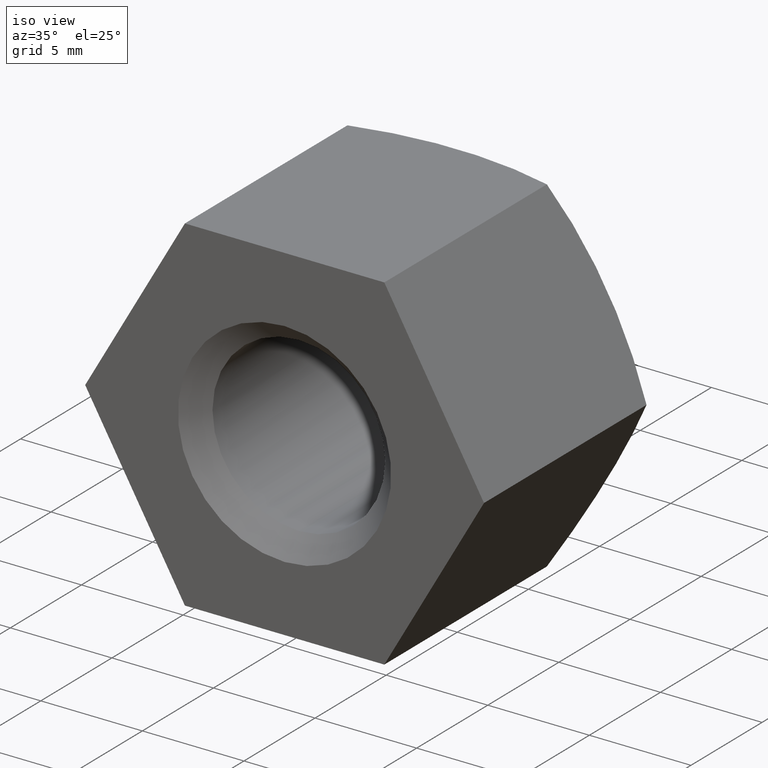
[diagram: clean part render]
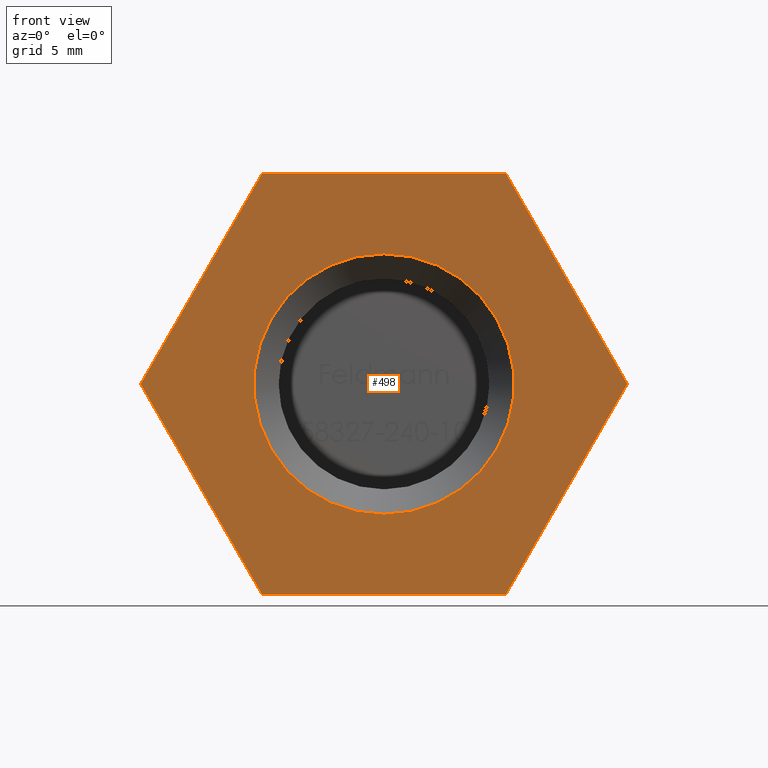
[diagram: tour spotlight — one face highlighted and labeled with its STEP entity id]
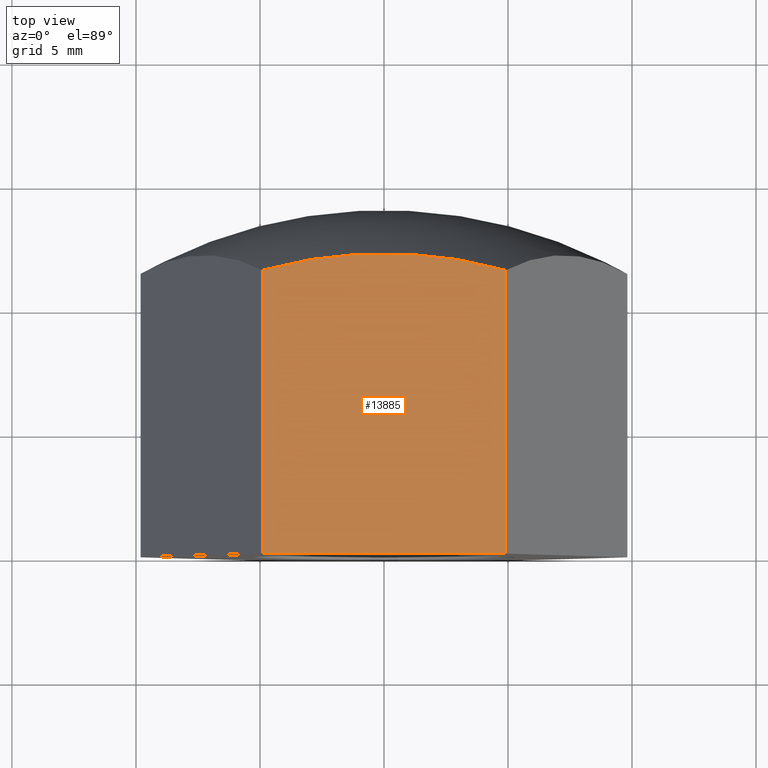
[diagram: tour spotlight — one face highlighted and labeled with its STEP entity id]
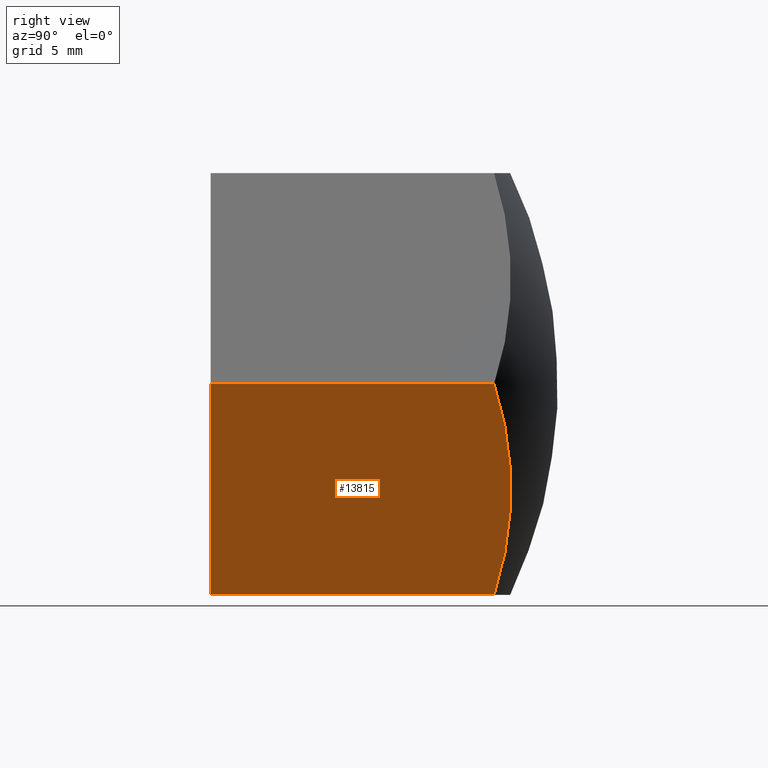
[diagram: tour spotlight — one face highlighted and labeled with its STEP entity id]
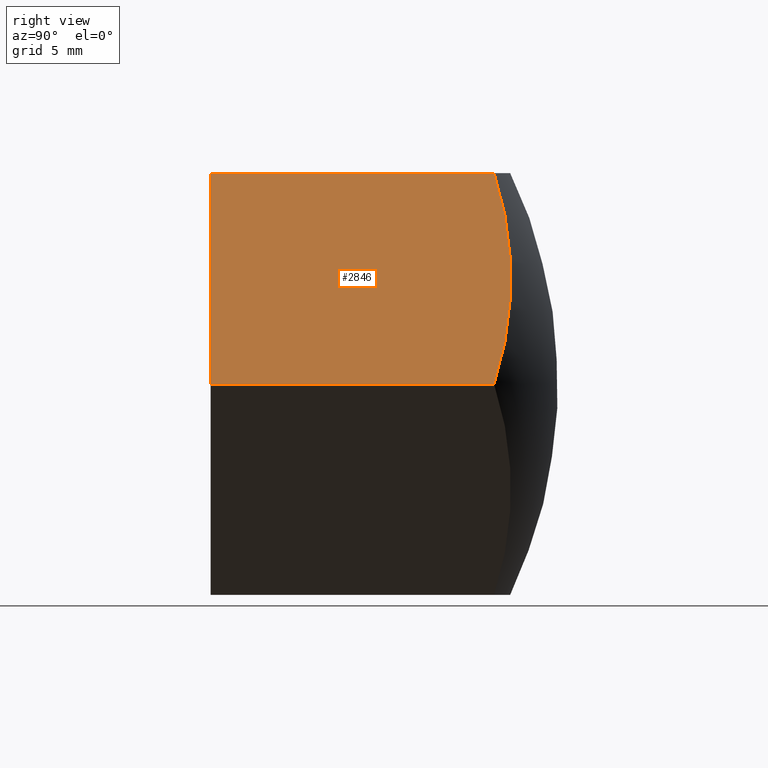
[diagram: tour spotlight — one face highlighted and labeled with its STEP entity id]
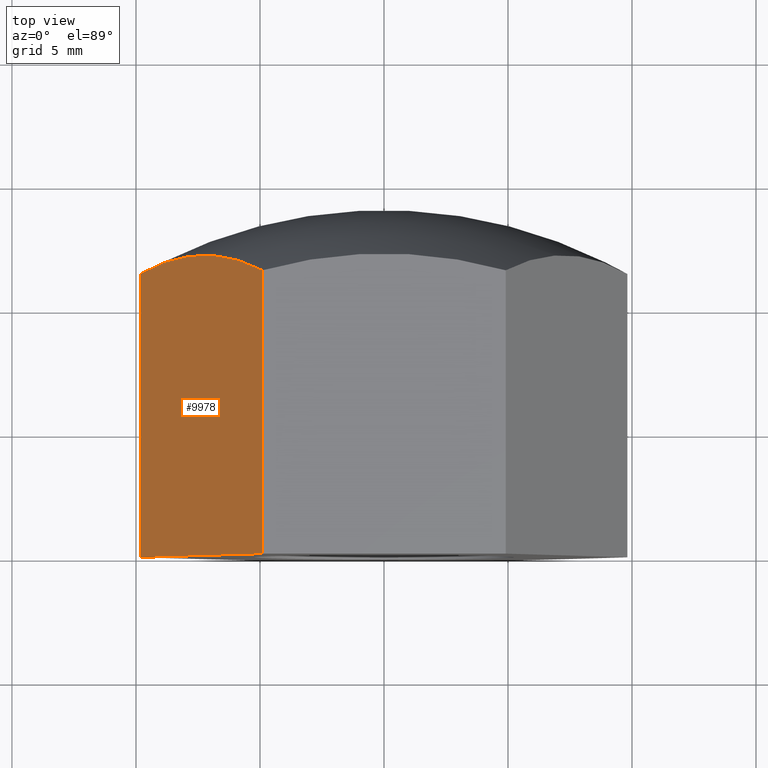
[diagram: tour spotlight — one face highlighted and labeled with its STEP entity id]
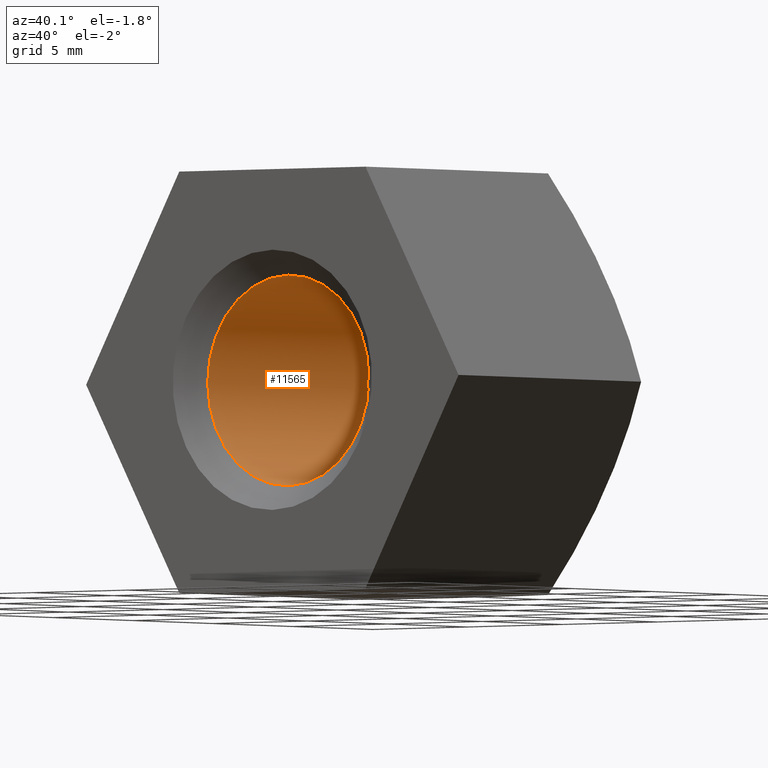
[diagram: tour spotlight — one face highlighted and labeled with its STEP entity id]
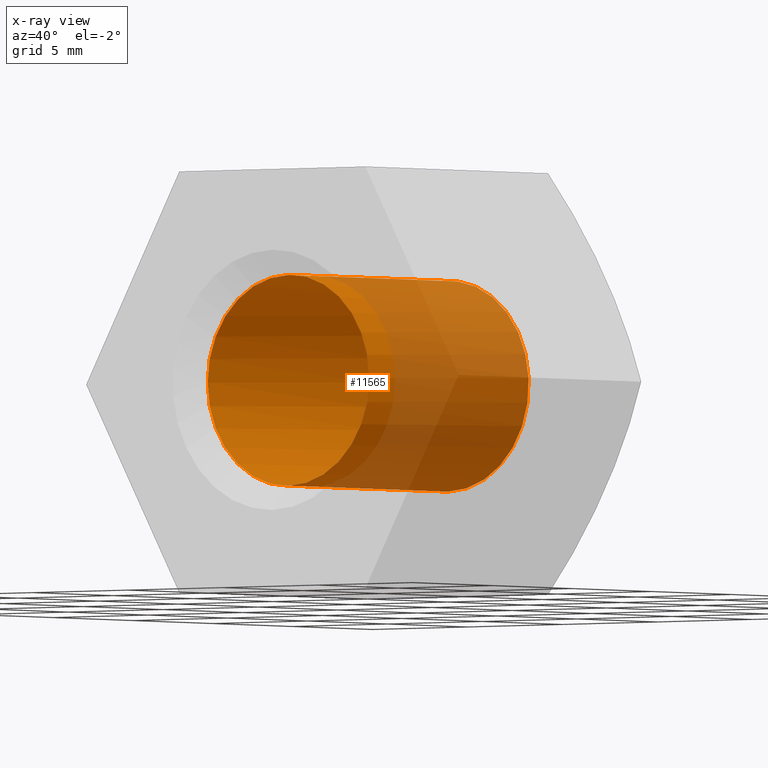
[diagram: x-ray of the same camera — body ghosted, this tour face saturated]
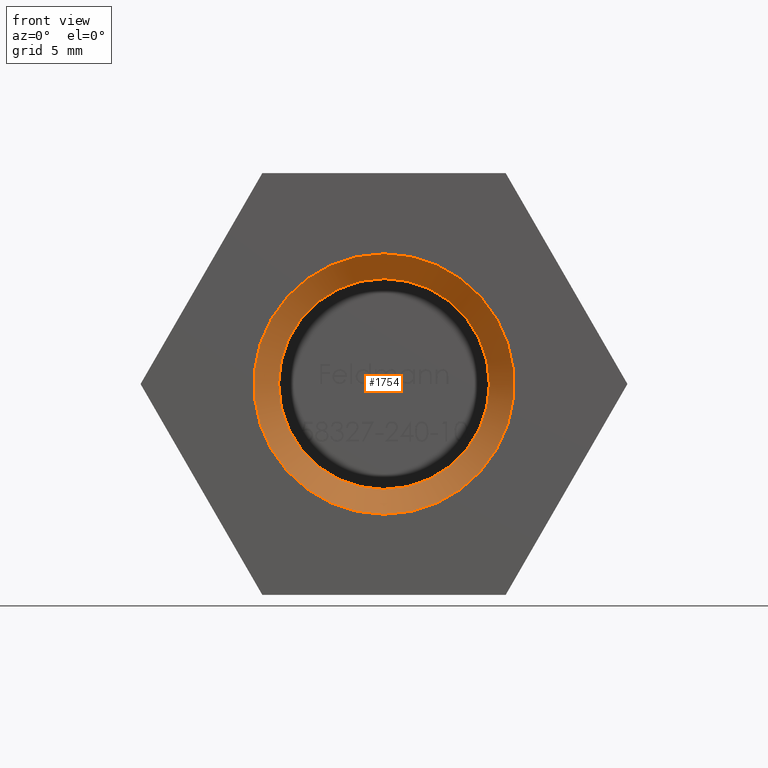
[diagram: tour spotlight — one face highlighted and labeled with its STEP entity id]
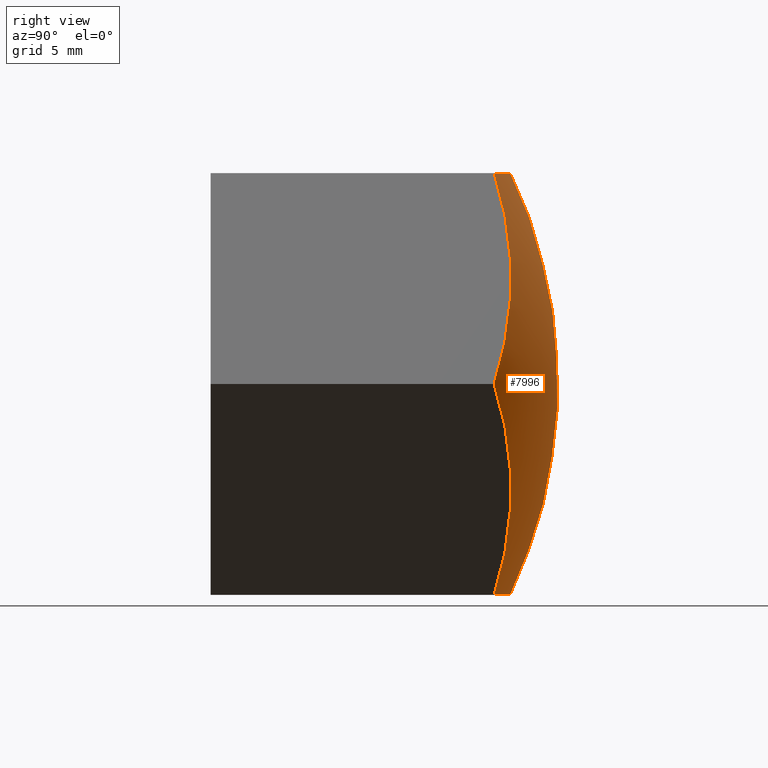
[diagram: tour spotlight — one face highlighted and labeled with its STEP entity id]
A machine part: a face-by-face anatomy tour. The part has 264 B-rep faces; the first image is the clean iso view, then the 8 largest visible faces are spotlighted one at a time (largest first), each with its STEP entity span.

Face 1 — front view, entity #498. In plain terms, the highlighted planar face has unit normal (0, 1, 0).
Definition (entity closure, byte-faithful):
#131 = LINE ( 'NONE', #4355, #9715 ) ;
#498 = ADVANCED_FACE ( 'NONE', ( #5648, #10811 ), #4535, .F. ) ;
#600 = EDGE_CURVE ( 'NONE', #8804, #8804, #1056, .T. ) ;
#679 = VECTOR ( 'NONE', #2719, 1000.000000000000000 ) ;
#1056 = CIRCLE ( 'NONE', #3073, 5.250000000000000888 ) ;
#1521 = CARTESIAN_POINT ( 'NONE',  ( -9.814954576223639648, 0.000000000000000000, -5.202893113404952294E-15 ) ) ;
#1833 = EDGE_CURVE ( 'NONE', #12482, #7891, #7765, .T. ) ;
#2052 = CARTESIAN_POINT ( 'NONE',  ( 0.000000000000000000, 0.000000000000000000, 5.250000000000000888 ) ) ;
#2196 = CARTESIAN_POINT ( 'NONE',  ( -9.814954576223639648, 0.000000000000000000, -5.202893113404952294E-15 ) ) ;
#2230 = CARTESIAN_POINT ( 'NONE',  ( 4.907477288111816272, 0.000000000000000000, -8.500000000000001776 ) ) ;
#2440 = VECTOR ( 'NONE', #2725, 1000.000000000000114 ) ;
#2503 = VERTEX_POINT ( 'NONE', #11295 ) ;
#2719 = DIRECTION ( 'NONE',  ( 1.000000000000000000, 0.000000000000000000, 0.000000000000000000 ) ) ;
#2725 = DIRECTION ( 'NONE',  ( -0.5000000000000002220, 0.000000000000000000, -0.8660254037844384856 ) ) ;
#3073 = AXIS2_PLACEMENT_3D ( 'NONE', #10651, #10509, #11676 ) ;
#3168 = VECTOR ( 'NONE', #3839, 1000.000000000000114 ) ;
#3280 = EDGE_LOOP ( 'NONE', ( #3783, #12334, #13739, #11910, #13878, #8244 ) ) ;
#3355 = CARTESIAN_POINT ( 'NONE',  ( -4.907477288111819824, 0.000000000000000000, -8.500000000000001776 ) ) ;
#3520 = LINE ( 'NONE', #13724, #3168 ) ;
#3783 = ORIENTED_EDGE ( 'NONE', *, *, #9271, .F. ) ;
#3839 = DIRECTION ( 'NONE',  ( 0.5000000000000001110, 0.000000000000000000, -0.8660254037844385966 ) ) ;
#4355 = CARTESIAN_POINT ( 'NONE',  ( 4.907477288111816272, 0.000000000000000000, -8.500000000000001776 ) ) ;
#4535 = PLANE ( 'NONE',  #11732 ) ;
#4924 = DIRECTION ( 'NONE',  ( 0.5000000000000002220, 0.000000000000000000, 0.8660254037844384856 ) ) ;
#5240 = CARTESIAN_POINT ( 'NONE',  ( 4.907477288111824265, 0.000000000000000000, 8.499999999999996447 ) ) ;
#5311 = LINE ( 'NONE', #1521, #12778 ) ;
#5451 = LINE ( 'NONE', #7069, #2440 ) ;
#5648 = FACE_BOUND ( 'NONE', #11752, .T. ) ;
#5669 = DIRECTION ( 'NONE',  ( 0.000000000000000000, 1.000000000000000000, 0.000000000000000000 ) ) ;
#5798 = VECTOR ( 'NONE', #14263, 1000.000000000000227 ) ;
#6093 = CARTESIAN_POINT ( 'NONE',  ( -4.907477288111816272, 0.000000000000000000, 8.499999999999996447 ) ) ;
#6352 = LINE ( 'NONE', #6093, #679 ) ;
#7056 = EDGE_CURVE ( 'NONE', #13930, #8961, #6352, .T. ) ;
#7069 = CARTESIAN_POINT ( 'NONE',  ( 9.814954576223641425, 0.000000000000000000, 3.478469870610631907E-15 ) ) ;
#7700 = EDGE_CURVE ( 'NONE', #7891, #13930, #5311, .T. ) ;
#7765 = LINE ( 'NONE', #10769, #5798 ) ;
#7891 = VERTEX_POINT ( 'NONE', #2196 ) ;
#8244 = ORIENTED_EDGE ( 'NONE', *, *, #11313, .F. ) ;
#8804 = VERTEX_POINT ( 'NONE', #2052 ) ;
#8961 = VERTEX_POINT ( 'NONE', #5240 ) ;
#9068 = CARTESIAN_POINT ( 'NONE',  ( 0.000000000000000000, 0.000000000000000000, 0.000000000000000000 ) ) ;
#9225 = ORIENTED_EDGE ( 'NONE', *, *, #600, .T. ) ;
#9271 = EDGE_CURVE ( 'NONE', #8961, #2503, #3520, .T. ) ;
#9715 = VECTOR ( 'NONE', #10001, 1000.000000000000000 ) ;
#10001 = DIRECTION ( 'NONE',  ( -1.000000000000000000, 0.000000000000000000, 0.000000000000000000 ) ) ;
#10509 = DIRECTION ( 'NONE',  ( 0.000000000000000000, 1.000000000000000000, 0.000000000000000000 ) ) ;
#10651 = CARTESIAN_POINT ( 'NONE',  ( 0.000000000000000000, 0.000000000000000000, 0.000000000000000000 ) ) ;
#10765 = CARTESIAN_POINT ( 'NONE',  ( -4.907477288111816272, 0.000000000000000000, 8.499999999999996447 ) ) ;
#10769 = CARTESIAN_POINT ( 'NONE',  ( -4.907477288111819824, 0.000000000000000000, -8.500000000000001776 ) ) ;
#10811 = FACE_OUTER_BOUND ( 'NONE', #3280, .T. ) ;
#10839 = VERTEX_POINT ( 'NONE', #2230 ) ;
#11295 = CARTESIAN_POINT ( 'NONE',  ( 9.814954576223641425, 0.000000000000000000, 3.478469870610631907E-15 ) ) ;
#11313 = EDGE_CURVE ( 'NONE', #2503, #10839, #5451, .T. ) ;
#11486 = DIRECTION ( 'NONE',  ( 0.000000000000000000, -0.000000000000000000, 1.000000000000000000 ) ) ;
#11676 = DIRECTION ( 'NONE',  ( 0.000000000000000000, 0.000000000000000000, 1.000000000000000000 ) ) ;
#11732 = AXIS2_PLACEMENT_3D ( 'NONE', #9068, #5669, #11486 ) ;
#11752 = EDGE_LOOP ( 'NONE', ( #9225 ) ) ;
#11910 = ORIENTED_EDGE ( 'NONE', *, *, #1833, .F. ) ;
#12334 = ORIENTED_EDGE ( 'NONE', *, *, #7056, .F. ) ;
#12482 = VERTEX_POINT ( 'NONE', #3355 ) ;
#12521 = EDGE_CURVE ( 'NONE', #10839, #12482, #131, .T. ) ;
#12778 = VECTOR ( 'NONE', #4924, 1000.000000000000000 ) ;
#13724 = CARTESIAN_POINT ( 'NONE',  ( 4.907477288111824265, 0.000000000000000000, 8.499999999999996447 ) ) ;
#13739 = ORIENTED_EDGE ( 'NONE', *, *, #7700, .F. ) ;
#13878 = ORIENTED_EDGE ( 'NONE', *, *, #12521, .F. ) ;
#13930 = VERTEX_POINT ( 'NONE', #10765 ) ;
#14263 = DIRECTION ( 'NONE',  ( -0.5000000000000001110, 0.000000000000000000, 0.8660254037844384856 ) ) ;

Face 2 — top view, entity #13885. In plain terms, the highlighted planar face has unit normal (0, 0, -1).
Definition (entity closure, byte-faithful):
#13 = EDGE_CURVE ( 'NONE', #1627, #4502, #3820, .T. ) ;
#15 = ORIENTED_EDGE ( 'NONE', *, *, #13, .T. ) ;
#679 = VECTOR ( 'NONE', #2719, 1000.000000000000000 ) ;
#820 = DIRECTION ( 'NONE',  ( -0.000000000000000000, -1.000000000000000000, -0.000000000000000000 ) ) ;
#952 = ORIENTED_EDGE ( 'NONE', *, *, #6137, .F. ) ;
#1200 = EDGE_CURVE ( 'NONE', #4502, #13930, #4933, .T. ) ;
#1627 = VERTEX_POINT ( 'NONE', #6605 ) ;
#2667 = FACE_OUTER_BOUND ( 'NONE', #12783, .T. ) ;
#2719 = DIRECTION ( 'NONE',  ( 1.000000000000000000, 0.000000000000000000, 0.000000000000000000 ) ) ;
#3699 = DIRECTION ( 'NONE',  ( -1.000000000000000000, 0.000000000000000000, -0.000000000000000000 ) ) ;
#3820 = CIRCLE ( 'NONE', #7103, 18.10386699023166912 ) ;
#4502 = VERTEX_POINT ( 'NONE', #11368 ) ;
#4933 = LINE ( 'NONE', #5941, #13639 ) ;
#5240 = CARTESIAN_POINT ( 'NONE',  ( 4.907477288111824265, 0.000000000000000000, 8.499999999999996447 ) ) ;
#5940 = PLANE ( 'NONE',  #8866 ) ;
#5941 = CARTESIAN_POINT ( 'NONE',  ( -4.907477288111816272, 14.00000000000000000, 8.499999999999996447 ) ) ;
#6093 = CARTESIAN_POINT ( 'NONE',  ( -4.907477288111816272, 0.000000000000000000, 8.499999999999996447 ) ) ;
#6137 = EDGE_CURVE ( 'NONE', #1627, #8961, #10921, .T. ) ;
#6352 = LINE ( 'NONE', #6093, #679 ) ;
#6605 = CARTESIAN_POINT ( 'NONE',  ( 4.907477288111825153, 11.42603416347697731, 8.499999999999996447 ) ) ;
#7056 = EDGE_CURVE ( 'NONE', #13930, #8961, #6352, .T. ) ;
#7100 = DIRECTION ( 'NONE',  ( 0.000000000000000000, 0.000000000000000000, -1.000000000000000000 ) ) ;
#7103 = AXIS2_PLACEMENT_3D ( 'NONE', #10872, #14326, #8636 ) ;
#7547 = VECTOR ( 'NONE', #820, 1000.000000000000000 ) ;
#8636 = DIRECTION ( 'NONE',  ( -1.000000000000000000, 5.318043541120866511E-15, 0.000000000000000000 ) ) ;
#8651 = CARTESIAN_POINT ( 'NONE',  ( 4.907477288111824265, 14.00000000000000000, 8.499999999999996447 ) ) ;
#8866 = AXIS2_PLACEMENT_3D ( 'NONE', #13882, #7100, #3699 ) ;
#8961 = VERTEX_POINT ( 'NONE', #5240 ) ;
#10586 = DIRECTION ( 'NONE',  ( -0.000000000000000000, -1.000000000000000000, -0.000000000000000000 ) ) ;
#10765 = CARTESIAN_POINT ( 'NONE',  ( -4.907477288111816272, 0.000000000000000000, 8.499999999999996447 ) ) ;
#10872 = CARTESIAN_POINT ( 'NONE',  ( 0.000000000000000000, -6.000000000000000000, 8.499999999999996447 ) ) ;
#10921 = LINE ( 'NONE', #8651, #7547 ) ;
#11040 = ORIENTED_EDGE ( 'NONE', *, *, #7056, .T. ) ;
#11368 = CARTESIAN_POINT ( 'NONE',  ( -4.907477288111816272, 11.42603416347697731, 8.499999999999996447 ) ) ;
#12783 = EDGE_LOOP ( 'NONE', ( #952, #15, #13918, #11040 ) ) ;
#13639 = VECTOR ( 'NONE', #10586, 1000.000000000000000 ) ;
#13882 = CARTESIAN_POINT ( 'NONE',  ( -4.907477288111816272, 14.00000000000000000, 8.499999999999996447 ) ) ;
#13885 = ADVANCED_FACE ( 'NONE', ( #2667 ), #5940, .F. ) ;
#13918 = ORIENTED_EDGE ( 'NONE', *, *, #1200, .T. ) ;
#13930 = VERTEX_POINT ( 'NONE', #10765 ) ;
#14326 = DIRECTION ( 'NONE',  ( -0.000000000000000000, -0.000000000000000000, 1.000000000000000000 ) ) ;

Face 3 — right view, entity #13815. In plain terms, the highlighted planar face has unit normal (-0.866, 0, 0.5).
Definition (entity closure, byte-faithful):
#261 = DIRECTION ( 'NONE',  ( 0.5000000000000002220, 0.000000000000000000, 0.8660254037844384856 ) ) ;
#676 = CARTESIAN_POINT ( 'NONE',  ( 4.907477288111816272, 14.00000000000000000, -8.500000000000001776 ) ) ;
#1536 = VECTOR ( 'NONE', #4122, 1000.000000000000000 ) ;
#1856 = ORIENTED_EDGE ( 'NONE', *, *, #11313, .T. ) ;
#2102 = DIRECTION ( 'NONE',  ( 0.8660254037844387076, -0.000000000000000000, -0.5000000000000003331 ) ) ;
#2230 = CARTESIAN_POINT ( 'NONE',  ( 4.907477288111816272, 0.000000000000000000, -8.500000000000001776 ) ) ;
#2440 = VECTOR ( 'NONE', #2725, 1000.000000000000114 ) ;
#2478 = DIRECTION ( 'NONE',  ( -0.8660254037844385966, 0.000000000000000000, 0.5000000000000003331 ) ) ;
#2503 = VERTEX_POINT ( 'NONE', #11295 ) ;
#2725 = DIRECTION ( 'NONE',  ( -0.5000000000000002220, 0.000000000000000000, -0.8660254037844384856 ) ) ;
#3199 = VERTEX_POINT ( 'NONE', #5483 ) ;
#3399 = EDGE_CURVE ( 'NONE', #3199, #10839, #10952, .T. ) ;
#3421 = AXIS2_PLACEMENT_3D ( 'NONE', #11512, #2478, #261 ) ;
#3471 = EDGE_CURVE ( 'NONE', #3199, #7669, #12353, .T. ) ;
#4122 = DIRECTION ( 'NONE',  ( -0.000000000000000000, -1.000000000000000000, -0.000000000000000000 ) ) ;
#4222 = CARTESIAN_POINT ( 'NONE',  ( 7.361215932167725740, -6.000000000000000000, -4.250000000000000888 ) ) ;
#5245 = VECTOR ( 'NONE', #10599, 1000.000000000000000 ) ;
#5451 = LINE ( 'NONE', #7069, #2440 ) ;
#5483 = CARTESIAN_POINT ( 'NONE',  ( 4.907477288111817160, 11.42603416347697731, -8.500000000000001776 ) ) ;
#7067 = ORIENTED_EDGE ( 'NONE', *, *, #13380, .T. ) ;
#7069 = CARTESIAN_POINT ( 'NONE',  ( 9.814954576223641425, 0.000000000000000000, 3.478469870610631907E-15 ) ) ;
#7658 = FACE_OUTER_BOUND ( 'NONE', #13526, .T. ) ;
#7669 = VERTEX_POINT ( 'NONE', #14001 ) ;
#8489 = CARTESIAN_POINT ( 'NONE',  ( 9.814954576223641425, 14.00000000000000000, 3.478469870610631907E-15 ) ) ;
#8595 = ORIENTED_EDGE ( 'NONE', *, *, #3471, .T. ) ;
#8637 = LINE ( 'NONE', #8489, #5245 ) ;
#10357 = AXIS2_PLACEMENT_3D ( 'NONE', #4222, #2102, #14552 ) ;
#10599 = DIRECTION ( 'NONE',  ( -0.000000000000000000, -1.000000000000000000, -0.000000000000000000 ) ) ;
#10630 = PLANE ( 'NONE',  #3421 ) ;
#10839 = VERTEX_POINT ( 'NONE', #2230 ) ;
#10952 = LINE ( 'NONE', #676, #1536 ) ;
#11295 = CARTESIAN_POINT ( 'NONE',  ( 9.814954576223641425, 0.000000000000000000, 3.478469870610631907E-15 ) ) ;
#11313 = EDGE_CURVE ( 'NONE', #2503, #10839, #5451, .T. ) ;
#11512 = CARTESIAN_POINT ( 'NONE',  ( 9.814954576223641425, 14.00000000000000000, 3.478469870610631907E-15 ) ) ;
#12353 = CIRCLE ( 'NONE', #10357, 18.10386699023166912 ) ;
#13380 = EDGE_CURVE ( 'NONE', #7669, #2503, #8637, .T. ) ;
#13526 = EDGE_LOOP ( 'NONE', ( #14623, #8595, #7067, #1856 ) ) ;
#13815 = ADVANCED_FACE ( 'NONE', ( #7658 ), #10630, .F. ) ;
#14001 = CARTESIAN_POINT ( 'NONE',  ( 9.814954576223639648, 11.42603416347697731, 8.673617379884035472E-16 ) ) ;
#14552 = DIRECTION ( 'NONE',  ( 0.5000000000000002220, -3.545362360747244604E-15, 0.8660254037844385966 ) ) ;
#14623 = ORIENTED_EDGE ( 'NONE', *, *, #3399, .F. ) ;

Face 4 — right view, entity #2846. In plain terms, the highlighted planar face has unit normal (-0.866, 0, -0.5).
Definition (entity closure, byte-faithful):
#820 = DIRECTION ( 'NONE',  ( -0.000000000000000000, -1.000000000000000000, -0.000000000000000000 ) ) ;
#1627 = VERTEX_POINT ( 'NONE', #6605 ) ;
#2503 = VERTEX_POINT ( 'NONE', #11295 ) ;
#2846 = ADVANCED_FACE ( 'NONE', ( #6138 ), #13099, .F. ) ;
#2991 = EDGE_LOOP ( 'NONE', ( #9831, #3594, #12085, #14448 ) ) ;
#3168 = VECTOR ( 'NONE', #3839, 1000.000000000000114 ) ;
#3188 = DIRECTION ( 'NONE',  ( 0.8660254037844388186, -0.000000000000000000, 0.5000000000000001110 ) ) ;
#3520 = LINE ( 'NONE', #13724, #3168 ) ;
#3594 = ORIENTED_EDGE ( 'NONE', *, *, #12864, .T. ) ;
#3839 = DIRECTION ( 'NONE',  ( 0.5000000000000001110, 0.000000000000000000, -0.8660254037844385966 ) ) ;
#4059 = CARTESIAN_POINT ( 'NONE',  ( 4.907477288111824265, 14.00000000000000000, 8.499999999999996447 ) ) ;
#4434 = CARTESIAN_POINT ( 'NONE',  ( 7.361215932167731957, -6.000000000000000000, 4.250000000000001776 ) ) ;
#5240 = CARTESIAN_POINT ( 'NONE',  ( 4.907477288111824265, 0.000000000000000000, 8.499999999999996447 ) ) ;
#5245 = VECTOR ( 'NONE', #10599, 1000.000000000000000 ) ;
#6137 = EDGE_CURVE ( 'NONE', #1627, #8961, #10921, .T. ) ;
#6138 = FACE_OUTER_BOUND ( 'NONE', #2991, .T. ) ;
#6154 = DIRECTION ( 'NONE',  ( -0.5000000000000000000, 0.000000000000000000, 0.8660254037844385966 ) ) ;
#6308 = CIRCLE ( 'NONE', #7895, 18.10386699023166912 ) ;
#6605 = CARTESIAN_POINT ( 'NONE',  ( 4.907477288111825153, 11.42603416347697731, 8.499999999999996447 ) ) ;
#7547 = VECTOR ( 'NONE', #820, 1000.000000000000000 ) ;
#7669 = VERTEX_POINT ( 'NONE', #14001 ) ;
#7895 = AXIS2_PLACEMENT_3D ( 'NONE', #4434, #3188, #13516 ) ;
#8489 = CARTESIAN_POINT ( 'NONE',  ( 9.814954576223641425, 14.00000000000000000, 3.478469870610631907E-15 ) ) ;
#8637 = LINE ( 'NONE', #8489, #5245 ) ;
#8651 = CARTESIAN_POINT ( 'NONE',  ( 4.907477288111824265, 14.00000000000000000, 8.499999999999996447 ) ) ;
#8961 = VERTEX_POINT ( 'NONE', #5240 ) ;
#9271 = EDGE_CURVE ( 'NONE', #8961, #2503, #3520, .T. ) ;
#9831 = ORIENTED_EDGE ( 'NONE', *, *, #13380, .F. ) ;
#10599 = DIRECTION ( 'NONE',  ( -0.000000000000000000, -1.000000000000000000, -0.000000000000000000 ) ) ;
#10810 = AXIS2_PLACEMENT_3D ( 'NONE', #4059, #12904, #6154 ) ;
#10921 = LINE ( 'NONE', #8651, #7547 ) ;
#11295 = CARTESIAN_POINT ( 'NONE',  ( 9.814954576223641425, 0.000000000000000000, 3.478469870610631907E-15 ) ) ;
#12085 = ORIENTED_EDGE ( 'NONE', *, *, #6137, .T. ) ;
#12864 = EDGE_CURVE ( 'NONE', #7669, #1627, #6308, .T. ) ;
#12904 = DIRECTION ( 'NONE',  ( -0.8660254037844387076, 0.000000000000000000, -0.5000000000000001110 ) ) ;
#13099 = PLANE ( 'NONE',  #10810 ) ;
#13380 = EDGE_CURVE ( 'NONE', #7669, #2503, #8637, .T. ) ;
#13516 = DIRECTION ( 'NONE',  ( -0.5000000000000000000, 0.000000000000000000, 0.8660254037844385966 ) ) ;
#13724 = CARTESIAN_POINT ( 'NONE',  ( 4.907477288111824265, 0.000000000000000000, 8.499999999999996447 ) ) ;
#14001 = CARTESIAN_POINT ( 'NONE',  ( 9.814954576223639648, 11.42603416347697731, 8.673617379884035472E-16 ) ) ;
#14448 = ORIENTED_EDGE ( 'NONE', *, *, #9271, .T. ) ;

Face 5 — top view, entity #9978. In plain terms, the highlighted planar face has unit normal (0.866, 0, -0.5).
Definition (entity closure, byte-faithful):
#877 = DIRECTION ( 'NONE',  ( -0.000000000000000000, -1.000000000000000000, -0.000000000000000000 ) ) ;
#1001 = EDGE_CURVE ( 'NONE', #4502, #1280, #5106, .T. ) ;
#1200 = EDGE_CURVE ( 'NONE', #4502, #13930, #4933, .T. ) ;
#1280 = VERTEX_POINT ( 'NONE', #8284 ) ;
#1521 = CARTESIAN_POINT ( 'NONE',  ( -9.814954576223639648, 0.000000000000000000, -5.202893113404952294E-15 ) ) ;
#2196 = CARTESIAN_POINT ( 'NONE',  ( -9.814954576223639648, 0.000000000000000000, -5.202893113404952294E-15 ) ) ;
#4423 = CARTESIAN_POINT ( 'NONE',  ( -9.814954576223639648, 14.00000000000000000, -5.202893113404952294E-15 ) ) ;
#4502 = VERTEX_POINT ( 'NONE', #11368 ) ;
#4836 = ORIENTED_EDGE ( 'NONE', *, *, #9920, .T. ) ;
#4924 = DIRECTION ( 'NONE',  ( 0.5000000000000002220, 0.000000000000000000, 0.8660254037844384856 ) ) ;
#4933 = LINE ( 'NONE', #5941, #13639 ) ;
#5106 = CIRCLE ( 'NONE', #6813, 18.10386699023166912 ) ;
#5311 = LINE ( 'NONE', #1521, #12778 ) ;
#5817 = VECTOR ( 'NONE', #877, 1000.000000000000000 ) ;
#5941 = CARTESIAN_POINT ( 'NONE',  ( -4.907477288111816272, 14.00000000000000000, 8.499999999999996447 ) ) ;
#6524 = DIRECTION ( 'NONE',  ( -0.8660254037844385966, -0.000000000000000000, 0.5000000000000002220 ) ) ;
#6657 = PLANE ( 'NONE',  #10565 ) ;
#6813 = AXIS2_PLACEMENT_3D ( 'NONE', #12322, #6524, #8717 ) ;
#7700 = EDGE_CURVE ( 'NONE', #7891, #13930, #5311, .T. ) ;
#7891 = VERTEX_POINT ( 'NONE', #2196 ) ;
#8284 = CARTESIAN_POINT ( 'NONE',  ( -9.814954576223639648, 11.42603416347697731, -8.673617379884035472E-16 ) ) ;
#8417 = EDGE_LOOP ( 'NONE', ( #8547, #12446, #4836, #11728 ) ) ;
#8485 = LINE ( 'NONE', #13309, #5817 ) ;
#8547 = ORIENTED_EDGE ( 'NONE', *, *, #1200, .F. ) ;
#8717 = DIRECTION ( 'NONE',  ( -0.5000000000000001110, -3.545362360747244604E-15, -0.8660254037844385966 ) ) ;
#9920 = EDGE_CURVE ( 'NONE', #1280, #7891, #8485, .T. ) ;
#9978 = ADVANCED_FACE ( 'NONE', ( #14705 ), #6657, .F. ) ;
#10565 = AXIS2_PLACEMENT_3D ( 'NONE', #4423, #13405, #13502 ) ;
#10586 = DIRECTION ( 'NONE',  ( -0.000000000000000000, -1.000000000000000000, -0.000000000000000000 ) ) ;
#10765 = CARTESIAN_POINT ( 'NONE',  ( -4.907477288111816272, 0.000000000000000000, 8.499999999999996447 ) ) ;
#11368 = CARTESIAN_POINT ( 'NONE',  ( -4.907477288111816272, 11.42603416347697731, 8.499999999999996447 ) ) ;
#11728 = ORIENTED_EDGE ( 'NONE', *, *, #7700, .T. ) ;
#12322 = CARTESIAN_POINT ( 'NONE',  ( -7.361215932167727516, -6.000000000000000000, 4.250000000000000888 ) ) ;
#12446 = ORIENTED_EDGE ( 'NONE', *, *, #1001, .T. ) ;
#12778 = VECTOR ( 'NONE', #4924, 1000.000000000000000 ) ;
#13309 = CARTESIAN_POINT ( 'NONE',  ( -9.814954576223639648, 14.00000000000000000, -5.202893113404952294E-15 ) ) ;
#13405 = DIRECTION ( 'NONE',  ( 0.8660254037844385966, 0.000000000000000000, -0.5000000000000003331 ) ) ;
#13502 = DIRECTION ( 'NONE',  ( -0.5000000000000002220, 0.000000000000000000, -0.8660254037844384856 ) ) ;
#13639 = VECTOR ( 'NONE', #10586, 1000.000000000000000 ) ;
#13930 = VERTEX_POINT ( 'NONE', #10765 ) ;
#14705 = FACE_OUTER_BOUND ( 'NONE', #8417, .T. ) ;

Face 6 — auxiliary view, entity #11565. An x-ray twin of the same camera follows (body ghosted, this face saturated) — the face is partly hidden behind the body. In plain terms, the highlighted cylindrical surface (bore or boss wall) has radius 4.25 mm, axis along (-0, -1, -0).
Definition (entity closure, byte-faithful):
#28 = ORIENTED_EDGE ( 'NONE', *, *, #8164, .T. ) ;
#1131 = AXIS2_PLACEMENT_3D ( 'NONE', #6752, #11229, #2189 ) ;
#1943 = ORIENTED_EDGE ( 'NONE', *, *, #6244, .F. ) ;
#2189 = DIRECTION ( 'NONE',  ( 0.000000000000000000, 0.000000000000000000, -1.000000000000000000 ) ) ;
#2462 = AXIS2_PLACEMENT_3D ( 'NONE', #6542, #14486, #8585 ) ;
#4294 = DIRECTION ( 'NONE',  ( 0.000000000000000000, 0.000000000000000000, -1.000000000000000000 ) ) ;
#5260 = FACE_OUTER_BOUND ( 'NONE', #12099, .T. ) ;
#5362 = CARTESIAN_POINT ( 'NONE',  ( 0.000000000000000000, 1.000000000000001776, 4.249999999999996447 ) ) ;
#5761 = VERTEX_POINT ( 'NONE', #11868 ) ;
#6055 = EDGE_LOOP ( 'NONE', ( #1943 ) ) ;
#6244 = EDGE_CURVE ( 'NONE', #5761, #5761, #10731, .T. ) ;
#6542 = CARTESIAN_POINT ( 'NONE',  ( 0.000000000000000000, 1.000000000000001776, 0.000000000000000000 ) ) ;
#6752 = CARTESIAN_POINT ( 'NONE',  ( 0.000000000000000000, 11.00000000000000000, 0.000000000000000000 ) ) ;
#8164 = EDGE_CURVE ( 'NONE', #13032, #13032, #12417, .T. ) ;
#8585 = DIRECTION ( 'NONE',  ( 0.000000000000000000, 0.000000000000000000, 1.000000000000000000 ) ) ;
#10731 = CIRCLE ( 'NONE', #1131, 4.249999999999994671 ) ;
#11226 = AXIS2_PLACEMENT_3D ( 'NONE', #13426, #14422, #4294 ) ;
#11229 = DIRECTION ( 'NONE',  ( -0.000000000000000000, -1.000000000000000000, -0.000000000000000000 ) ) ;
#11565 = ADVANCED_FACE ( 'NONE', ( #5260, #12728 ), #14137, .F. ) ;
#11868 = CARTESIAN_POINT ( 'NONE',  ( 0.000000000000000000, 11.00000000000000000, -4.249999999999994671 ) ) ;
#12099 = EDGE_LOOP ( 'NONE', ( #28 ) ) ;
#12417 = CIRCLE ( 'NONE', #2462, 4.249999999999996447 ) ;
#12728 = FACE_OUTER_BOUND ( 'NONE', #6055, .T. ) ;
#13032 = VERTEX_POINT ( 'NONE', #5362 ) ;
#13426 = CARTESIAN_POINT ( 'NONE',  ( 0.000000000000000000, 0.000000000000000000, 0.000000000000000000 ) ) ;
#14137 = CYLINDRICAL_SURFACE ( 'NONE', #11226, 4.249999999999996447 ) ;
#14422 = DIRECTION ( 'NONE',  ( -0.000000000000000000, -1.000000000000000000, -0.000000000000000000 ) ) ;
#14486 = DIRECTION ( 'NONE',  ( 0.000000000000000000, -1.000000000000000000, 0.000000000000000000 ) ) ;

Face 7 — front view, entity #1754. In plain terms, the highlighted conical surface has half-angle 45 deg.
Definition (entity closure, byte-faithful):
#401 = ORIENTED_EDGE ( 'NONE', *, *, #600, .F. ) ;
#600 = EDGE_CURVE ( 'NONE', #8804, #8804, #1056, .T. ) ;
#1056 = CIRCLE ( 'NONE', #3073, 5.250000000000000888 ) ;
#1754 = ADVANCED_FACE ( 'NONE', ( #14518, #8466 ), #12558, .F. ) ;
#2052 = CARTESIAN_POINT ( 'NONE',  ( 0.000000000000000000, 0.000000000000000000, 5.250000000000000888 ) ) ;
#2462 = AXIS2_PLACEMENT_3D ( 'NONE', #6542, #14486, #8585 ) ;
#3073 = AXIS2_PLACEMENT_3D ( 'NONE', #10651, #10509, #11676 ) ;
#5362 = CARTESIAN_POINT ( 'NONE',  ( 0.000000000000000000, 1.000000000000001776, 4.249999999999996447 ) ) ;
#6542 = CARTESIAN_POINT ( 'NONE',  ( 0.000000000000000000, 1.000000000000001776, 0.000000000000000000 ) ) ;
#6680 = DIRECTION ( 'NONE',  ( 0.000000000000000000, 0.000000000000000000, -1.000000000000000000 ) ) ;
#7877 = CARTESIAN_POINT ( 'NONE',  ( 0.000000000000000000, 1.000000000000001776, 0.000000000000000000 ) ) ;
#8164 = EDGE_CURVE ( 'NONE', #13032, #13032, #12417, .T. ) ;
#8466 = FACE_BOUND ( 'NONE', #11255, .T. ) ;
#8585 = DIRECTION ( 'NONE',  ( 0.000000000000000000, 0.000000000000000000, 1.000000000000000000 ) ) ;
#8804 = VERTEX_POINT ( 'NONE', #2052 ) ;
#10509 = DIRECTION ( 'NONE',  ( 0.000000000000000000, 1.000000000000000000, 0.000000000000000000 ) ) ;
#10651 = CARTESIAN_POINT ( 'NONE',  ( 0.000000000000000000, 0.000000000000000000, 0.000000000000000000 ) ) ;
#11099 = EDGE_LOOP ( 'NONE', ( #401 ) ) ;
#11255 = EDGE_LOOP ( 'NONE', ( #11452 ) ) ;
#11452 = ORIENTED_EDGE ( 'NONE', *, *, #8164, .F. ) ;
#11676 = DIRECTION ( 'NONE',  ( 0.000000000000000000, 0.000000000000000000, 1.000000000000000000 ) ) ;
#12417 = CIRCLE ( 'NONE', #2462, 4.249999999999996447 ) ;
#12558 = CONICAL_SURFACE ( 'NONE', #14408, 4.249999999999996447, 0.7853981633974496113 ) ;
#13032 = VERTEX_POINT ( 'NONE', #5362 ) ;
#13472 = DIRECTION ( 'NONE',  ( 0.000000000000000000, -1.000000000000000000, 0.000000000000000000 ) ) ;
#14408 = AXIS2_PLACEMENT_3D ( 'NONE', #7877, #13472, #6680 ) ;
#14486 = DIRECTION ( 'NONE',  ( 0.000000000000000000, -1.000000000000000000, 0.000000000000000000 ) ) ;
#14518 = FACE_OUTER_BOUND ( 'NONE', #11099, .T. ) ;

Face 8 — right view, entity #7996. In plain terms, the highlighted spherical surface has radius 20 mm.
Definition (entity closure, byte-faithful):
#10 = AXIS2_PLACEMENT_3D ( 'NONE', #13376, #14523, #6484 ) ;
#13 = EDGE_CURVE ( 'NONE', #1627, #4502, #3820, .T. ) ;
#209 = EDGE_LOOP ( 'NONE', ( #2874, #7105, #4532, #13545, #10850, #9634 ) ) ;
#462 = DIRECTION ( 'NONE',  ( 1.000000000000000000, 0.000000000000000000, 0.000000000000000000 ) ) ;
#1001 = EDGE_CURVE ( 'NONE', #4502, #1280, #5106, .T. ) ;
#1280 = VERTEX_POINT ( 'NONE', #8284 ) ;
#1627 = VERTEX_POINT ( 'NONE', #6605 ) ;
#1714 = CARTESIAN_POINT ( 'NONE',  ( -4.907477288111815383, 11.42603416347697731, -8.500000000000001776 ) ) ;
#2102 = DIRECTION ( 'NONE',  ( 0.8660254037844387076, -0.000000000000000000, -0.5000000000000003331 ) ) ;
#2874 = ORIENTED_EDGE ( 'NONE', *, *, #3471, .F. ) ;
#3188 = DIRECTION ( 'NONE',  ( 0.8660254037844388186, -0.000000000000000000, 0.5000000000000001110 ) ) ;
#3199 = VERTEX_POINT ( 'NONE', #5483 ) ;
#3471 = EDGE_CURVE ( 'NONE', #3199, #7669, #12353, .T. ) ;
#3820 = CIRCLE ( 'NONE', #7103, 18.10386699023166912 ) ;
#4222 = CARTESIAN_POINT ( 'NONE',  ( 7.361215932167725740, -6.000000000000000000, -4.250000000000000888 ) ) ;
#4434 = CARTESIAN_POINT ( 'NONE',  ( 7.361215932167731957, -6.000000000000000000, 4.250000000000001776 ) ) ;
#4502 = VERTEX_POINT ( 'NONE', #11368 ) ;
#4532 = ORIENTED_EDGE ( 'NONE', *, *, #9184, .F. ) ;
#5106 = CIRCLE ( 'NONE', #6813, 18.10386699023166912 ) ;
#5294 = VERTEX_POINT ( 'NONE', #1714 ) ;
#5406 = AXIS2_PLACEMENT_3D ( 'NONE', #10715, #6079, #11787 ) ;
#5483 = CARTESIAN_POINT ( 'NONE',  ( 4.907477288111817160, 11.42603416347697731, -8.500000000000001776 ) ) ;
#6056 = AXIS2_PLACEMENT_3D ( 'NONE', #12748, #10822, #462 ) ;
#6079 = DIRECTION ( 'NONE',  ( -0.8660254037844387076, 0.000000000000000000, -0.5000000000000002220 ) ) ;
#6308 = CIRCLE ( 'NONE', #7895, 18.10386699023166912 ) ;
#6484 = DIRECTION ( 'NONE',  ( 1.000000000000000000, 7.090724721494490785E-15, 0.000000000000000000 ) ) ;
#6524 = DIRECTION ( 'NONE',  ( -0.8660254037844385966, -0.000000000000000000, 0.5000000000000002220 ) ) ;
#6605 = CARTESIAN_POINT ( 'NONE',  ( 4.907477288111825153, 11.42603416347697731, 8.499999999999996447 ) ) ;
#6813 = AXIS2_PLACEMENT_3D ( 'NONE', #12322, #6524, #8717 ) ;
#7103 = AXIS2_PLACEMENT_3D ( 'NONE', #10872, #14326, #8636 ) ;
#7105 = ORIENTED_EDGE ( 'NONE', *, *, #11563, .F. ) ;
#7669 = VERTEX_POINT ( 'NONE', #14001 ) ;
#7895 = AXIS2_PLACEMENT_3D ( 'NONE', #4434, #3188, #13516 ) ;
#7996 = ADVANCED_FACE ( 'NONE', ( #14561 ), #11548, .T. ) ;
#8284 = CARTESIAN_POINT ( 'NONE',  ( -9.814954576223639648, 11.42603416347697731, -8.673617379884035472E-16 ) ) ;
#8636 = DIRECTION ( 'NONE',  ( -1.000000000000000000, 5.318043541120866511E-15, 0.000000000000000000 ) ) ;
#8717 = DIRECTION ( 'NONE',  ( -0.5000000000000001110, -3.545362360747244604E-15, -0.8660254037844385966 ) ) ;
#9184 = EDGE_CURVE ( 'NONE', #1280, #5294, #10313, .T. ) ;
#9634 = ORIENTED_EDGE ( 'NONE', *, *, #12864, .F. ) ;
#10098 = CIRCLE ( 'NONE', #10, 18.10386699023166557 ) ;
#10313 = CIRCLE ( 'NONE', #5406, 18.10386699023166912 ) ;
#10357 = AXIS2_PLACEMENT_3D ( 'NONE', #4222, #2102, #14552 ) ;
#10715 = CARTESIAN_POINT ( 'NONE',  ( -7.361215932167727516, -6.000000000000000000, -4.250000000000000888 ) ) ;
#10822 = DIRECTION ( 'NONE',  ( 0.000000000000000000, 0.000000000000000000, 1.000000000000000000 ) ) ;
#10850 = ORIENTED_EDGE ( 'NONE', *, *, #13, .F. ) ;
#10872 = CARTESIAN_POINT ( 'NONE',  ( 0.000000000000000000, -6.000000000000000000, 8.499999999999996447 ) ) ;
#11368 = CARTESIAN_POINT ( 'NONE',  ( -4.907477288111816272, 11.42603416347697731, 8.499999999999996447 ) ) ;
#11548 = SPHERICAL_SURFACE ( 'NONE', #6056, 19.99999999999999645 ) ;
#11563 = EDGE_CURVE ( 'NONE', #5294, #3199, #10098, .T. ) ;
#11787 = DIRECTION ( 'NONE',  ( 0.5000000000000001110, -1.772681180373622302E-15, -0.8660254037844385966 ) ) ;
#12322 = CARTESIAN_POINT ( 'NONE',  ( -7.361215932167727516, -6.000000000000000000, 4.250000000000000888 ) ) ;
#12353 = CIRCLE ( 'NONE', #10357, 18.10386699023166912 ) ;
#12748 = CARTESIAN_POINT ( 'NONE',  ( 0.000000000000000000, -6.000000000000000000, 0.000000000000000000 ) ) ;
#12864 = EDGE_CURVE ( 'NONE', #7669, #1627, #6308, .T. ) ;
#13376 = CARTESIAN_POINT ( 'NONE',  ( 0.000000000000000000, -6.000000000000000000, -8.500000000000001776 ) ) ;
#13516 = DIRECTION ( 'NONE',  ( -0.5000000000000000000, 0.000000000000000000, 0.8660254037844385966 ) ) ;
#13545 = ORIENTED_EDGE ( 'NONE', *, *, #1001, .F. ) ;
#14001 = CARTESIAN_POINT ( 'NONE',  ( 9.814954576223639648, 11.42603416347697731, 8.673617379884035472E-16 ) ) ;
#14326 = DIRECTION ( 'NONE',  ( -0.000000000000000000, -0.000000000000000000, 1.000000000000000000 ) ) ;
#14523 = DIRECTION ( 'NONE',  ( -0.000000000000000000, 0.000000000000000000, -1.000000000000000000 ) ) ;
#14552 = DIRECTION ( 'NONE',  ( 0.5000000000000002220, -3.545362360747244604E-15, 0.8660254037844385966 ) ) ;
#14561 = FACE_OUTER_BOUND ( 'NONE', #209, .T. ) ;